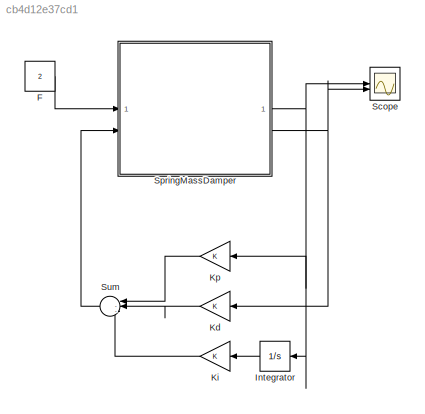
MODEL slx_cb4d12e37cd1
KIND model
CONFIG AbsTol = auto
CONFIG EnableMultiTasking = off
CONFIG FixedStep = auto
CONFIG MaxStep = auto
CONFIG MinStep = auto
CONFIG RelTol = 1e-3
CONFIG SampleTimeConstraint = Unconstrained
CONFIG SolverName = VariableStepAuto
CONFIG StartTime = 0.0
CONFIG StopTime = 10.0
BLOCK [Constant] F
  Value = 2
BLOCK [Integrator] Integrator
  NameLocation = top
BLOCK [Gain] Kd
  NameLocation = top
BLOCK [Gain] Ki
  NameLocation = top
BLOCK [Gain] Kp
  NameLocation = top
BLOCK [Scope] Scope
  Floating = off
  NumInputPorts = 2
  ScopeSpecificationString = Simulink.scopes.TimeScopeBlockCfg('CurrentConfiguration', extmgr.ConfigurationSet(extmgr.Configuration('Core','General UI',true),extmgr.Configuration('Core','Source UI',true),extmgr.Configuration('Sources','WiredSimulink',true),extmgr.Configuration('Visuals','Time Domain',true,'SerializedDisplays',{struct('MinYLimReal','-0.68706','MaxYLimReal','1.22745','YLabelReal','','MinYLimMag','0.00000','MaxY...<+1388ch>
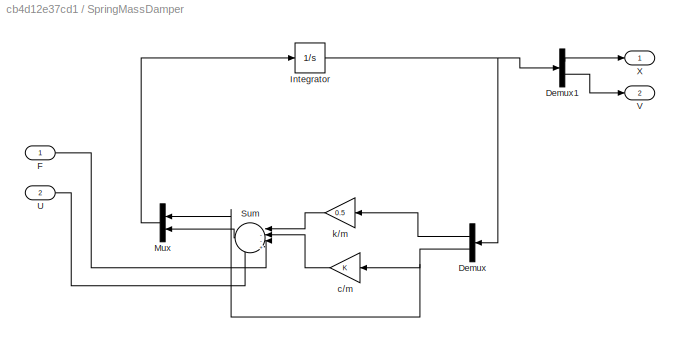
BLOCK [SubSystem] SpringMassDamper
BLOCK [Demux] SpringMassDamper/Demux
  NameLocation = top
  Outputs = 2
BLOCK [Demux] SpringMassDamper/Demux1
  Outputs = 2
BLOCK [Inport] SpringMassDamper/F
BLOCK [Integrator] SpringMassDamper/Integrator
  InitialCondition = [1,0]
BLOCK [Mux] SpringMassDamper/Mux
  DisplayOption = bar
  Inputs = 2
  NameLocation = top
BLOCK [Sum] SpringMassDamper/Sum
  Inputs = |--++
  NameLocation = top
BLOCK [Inport] SpringMassDamper/U
  Port = 2
BLOCK [Outport] SpringMassDamper/V
  Port = 2
BLOCK [Outport] SpringMassDamper/X
BLOCK [Gain] SpringMassDamper/c//m
  NameLocation = top
BLOCK [Gain] SpringMassDamper/k//m
  Gain = 0.5
  NameLocation = top
BLOCK [Sum] Sum
  Inputs = |---
  NameLocation = top
LINE F:1 -> SpringMassDamper:1
LINE Integrator:1 -> Ki:1
LINE Kd:1 -> Sum:2
LINE Ki:1 -> Sum:3
LINE Kp:1 -> Sum:1
LINE SpringMassDamper/Demux1:1 -> SpringMassDamper/X:1
LINE SpringMassDamper/Demux1:2 -> SpringMassDamper/V:1
LINE SpringMassDamper/Demux:1 -> SpringMassDamper/k//m:1
NET SpringMassDamper/Demux:2 -> SpringMassDamper/Mux:1, SpringMassDamper/c//m:1
LINE SpringMassDamper/F:1 -> SpringMassDamper/Sum:3
NET SpringMassDamper/Integrator:1 -> SpringMassDamper/Demux1:1, SpringMassDamper/Demux:1
LINE SpringMassDamper/Mux:1 -> SpringMassDamper/Integrator:1
LINE SpringMassDamper/Sum:1 -> SpringMassDamper/Mux:2
LINE SpringMassDamper/U:1 -> SpringMassDamper/Sum:4
LINE SpringMassDamper/c//m:1 -> SpringMassDamper/Sum:2
LINE SpringMassDamper/k//m:1 -> SpringMassDamper/Sum:1
NET SpringMassDamper:1 -> Integrator:1, Kp:1, Scope:1
NET SpringMassDamper:2 -> Kd:1, Scope:2
LINE Sum:1 -> SpringMassDamper:2
note: NET lines group one-source signal fan-out (src -> all destinations, sorted); 1:1 wires keep LINE
